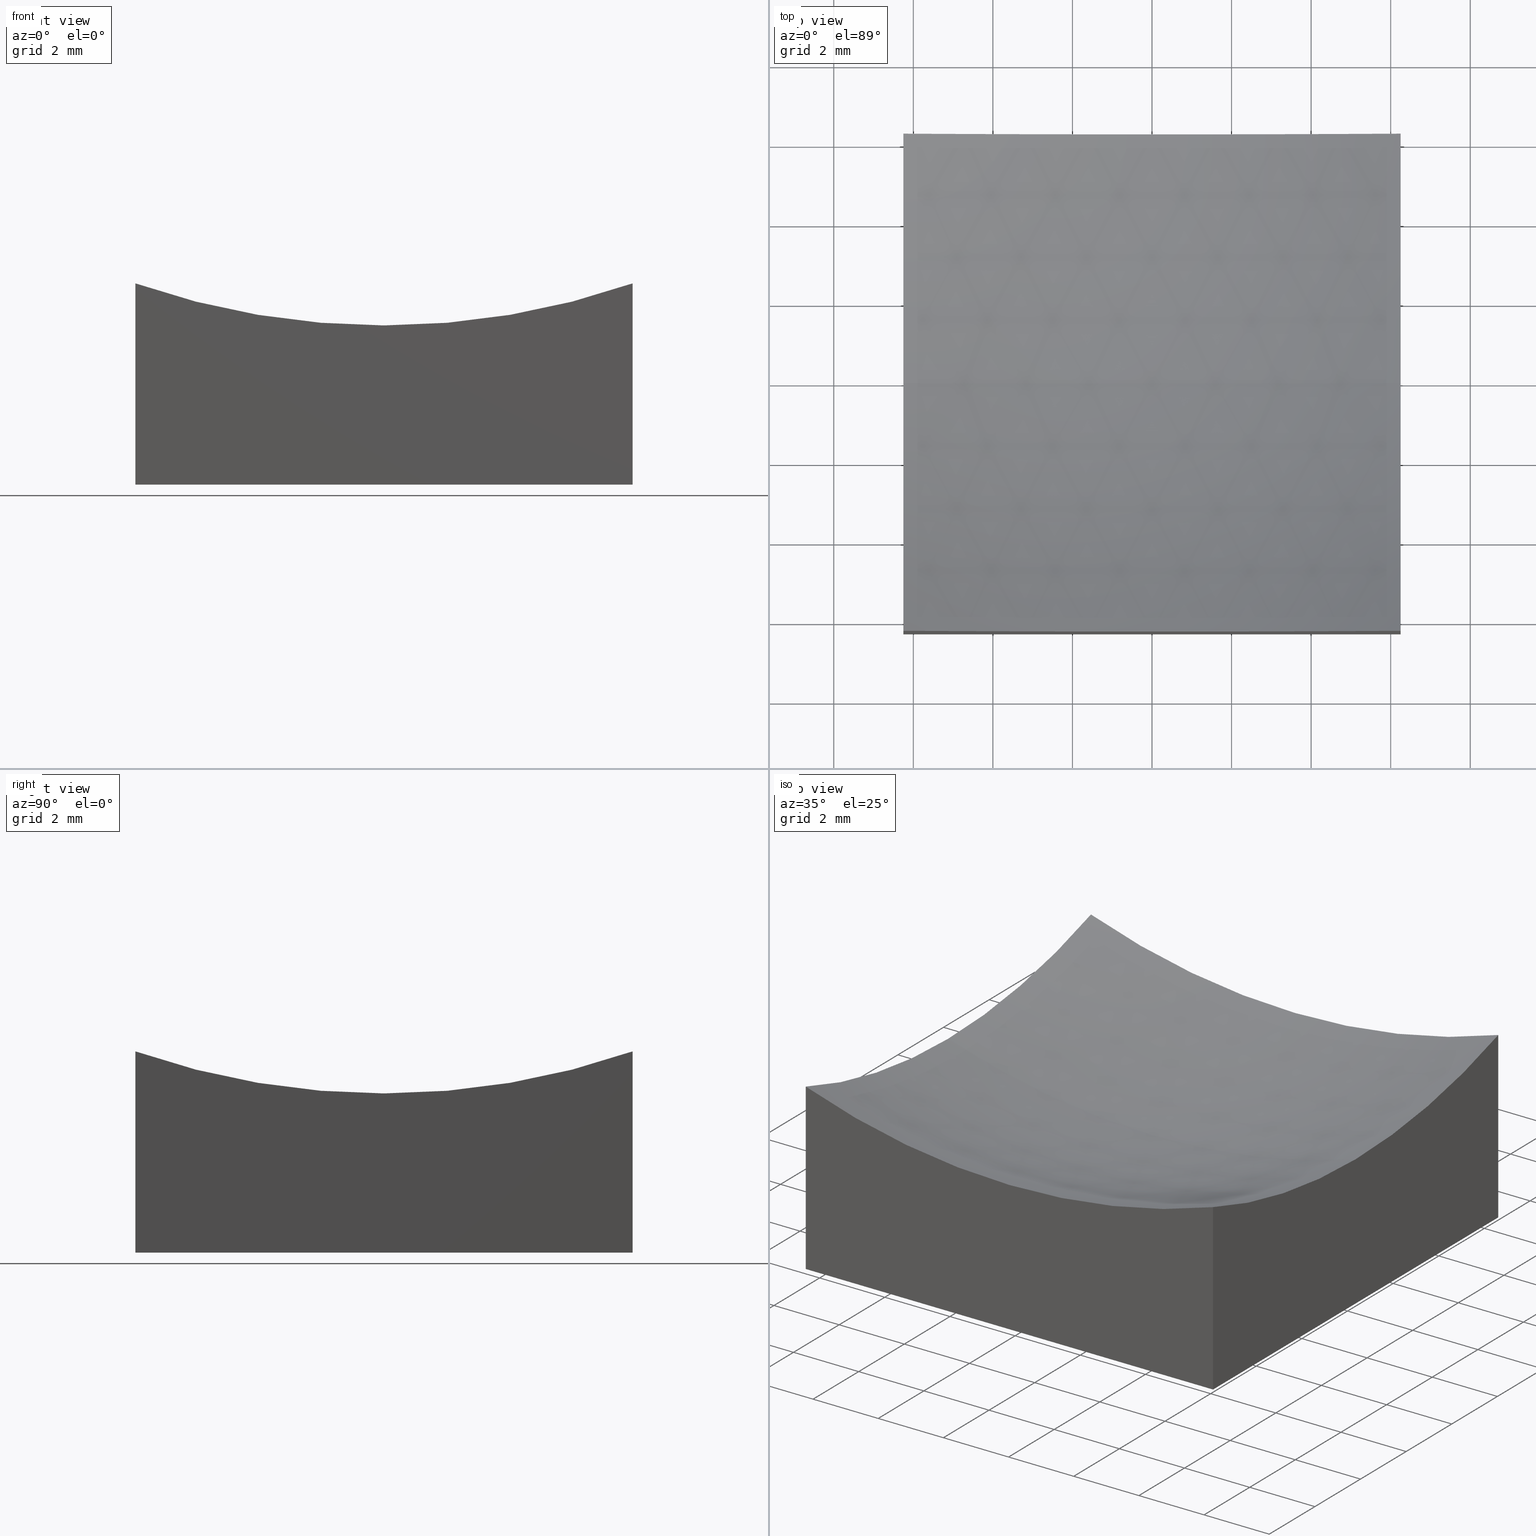
[diagram: canonical four-view strip — front | top / right | iso, engineering-drawing reading convention]
A machine part, canonical four-view strip (front | top / right | iso — engineering-drawing reading convention). The complete STEP part file that produces these views, byte-faithful:
ISO-10303-21;
HEADER;
FILE_DESCRIPTION (( 'STEP AP214' ),
    '1' );
FILE_NAME ('270011.STEP',
    '2020-06-01T07:56:08',
    ( '' ),
    ( '' ),
    'SwSTEP 2.0',
    'SolidWorks 2019',
    '' );
FILE_SCHEMA (( 'AUTOMOTIVE_DESIGN' ));
ENDSEC;

DATA;
#1 = EDGE_CURVE ( 'NONE', #211, #97, #94, .T. ) ;
#2 = VECTOR ( 'NONE', #133, 1000.000000000000000 ) ;
#3 = CARTESIAN_POINT ( 'NONE',  ( -6.250000000000000000, 6.250000000000000888, 10.00000000000000000 ) ) ;
#4 = CARTESIAN_POINT ( 'NONE',  ( 6.250000000000000000, 0.0000000000000000000, 4.001644808036667555 ) ) ;
#5 = DIRECTION ( 'NONE',  ( -0.0000000000000000000, 1.000000000000000000, 0.0000000000000000000 ) ) ;
#6 = DIRECTION ( 'NONE',  ( 0.0000000000000000000, 1.000000000000000000, 0.0000000000000000000 ) ) ;
#7 = AXIS2_PLACEMENT_3D ( 'NONE', #27, #5, #236 ) ;
#8 = EDGE_CURVE ( 'NONE', #244, #20, #241, .T. ) ;
#9 = VECTOR ( 'NONE', #213, 1000.000000000000000 ) ;
#10 = VERTEX_POINT ( 'NONE', #169 ) ;
#11 = ORIENTED_EDGE ( 'NONE', *, *, #84, .F. ) ;
#12 = MANIFOLD_SOLID_BREP ( '�г�-��ת2', #226 ) ;
#13 = SURFACE_STYLE_USAGE ( .BOTH. , #251 ) ;
#14 = ORIENTED_EDGE ( 'NONE', *, *, #207, .F. ) ;
#15 = PLANE ( 'NONE',  #53 ) ;
#16 = EDGE_LOOP ( 'NONE', ( #120, #170, #205, #148 ) ) ;
#17 = CIRCLE ( 'NONE', #158, 18.99835519196332712 ) ;
#18 = DIRECTION ( 'NONE',  ( 0.0000000000000000000, 1.000000000000000000, 0.0000000000000000000 ) ) ;
#19 = CARTESIAN_POINT ( 'NONE',  ( -6.250000000000000000, -6.250000000000000888, 0.0000000000000000000 ) ) ;
#20 = VERTEX_POINT ( 'NONE', #19 ) ;
#21 = DIRECTION ( 'NONE',  ( -0.0000000000000000000, -0.0000000000000000000, -1.000000000000000000 ) ) ;
#22 = ADVANCED_FACE ( 'NONE', ( #190 ), #15, .T. ) ;
#23 = COLOUR_RGB ( '',1.000000000000000000, 1.000000000000000000, 1.000000000000000000 ) ;
#24 = DIRECTION ( 'NONE',  ( 1.000000000000000000, 0.0000000000000000000, 0.0000000000000000000 ) ) ;
#25 = CARTESIAN_POINT ( 'NONE',  ( 2.816687638038912352E-15, 6.250000000000000888, 23.00000000000000000 ) ) ;
#26 = EDGE_CURVE ( 'NONE', #10, #244, #128, .T. ) ;
#27 = CARTESIAN_POINT ( 'NONE',  ( 2.816687638038912352E-15, 0.0000000000000000000, 23.00000000000000000 ) ) ;
#28 = LINE ( 'NONE', #127, #139 ) ;
#29 = DIRECTION ( 'NONE',  ( -0.0000000000000000000, 0.0000000000000000000, -1.000000000000000000 ) ) ;
#30 = ORIENTED_EDGE ( 'NONE', *, *, #179, .T. ) ;
#31 =( GEOMETRIC_REPRESENTATION_CONTEXT ( 3 ) GLOBAL_UNCERTAINTY_ASSIGNED_CONTEXT ( ( #129 ) ) GLOBAL_UNIT_ASSIGNED_CONTEXT ( ( #166, #151, #118 ) ) REPRESENTATION_CONTEXT ( 'NONE', 'WORKASPACE' ) );
#32 = EDGE_LOOP ( 'NONE', ( #192, #167, #110, #14, #208 ) ) ;
#33 = ORIENTED_EDGE ( 'NONE', *, *, #95, .T. ) ;
#34 = VERTEX_POINT ( 'NONE', #65 ) ;
#35 = CARTESIAN_POINT ( 'NONE',  ( 6.250000000000000000, 0.0000000000000000000, 23.00000000000000000 ) ) ;
#36 = DIRECTION ( 'NONE',  ( 0.0000000000000000000, 0.0000000000000000000, 1.000000000000000000 ) ) ;
#37 = AXIS2_PLACEMENT_3D ( 'NONE', #209, #18, #98 ) ;
#38 = ORIENTED_EDGE ( 'NONE', *, *, #163, .F. ) ;
#39 = PLANE ( 'NONE',  #206 ) ;
#40 = PRODUCT_CONTEXT ( 'NONE', #220, 'mechanical' ) ;
#41 = VECTOR ( 'NONE', #144, 1000.000000000000000 ) ;
#42 = EDGE_CURVE ( 'NONE', #147, #20, #201, .T. ) ;
#43 = AXIS2_PLACEMENT_3D ( 'NONE', #235, #86, #45 ) ;
#44 = FACE_OUTER_BOUND ( 'NONE', #32, .T. ) ;
#45 = DIRECTION ( 'NONE',  ( 1.000000000000000000, 0.0000000000000000000, 1.734723475976807094E-16 ) ) ;
#46 = DIRECTION ( 'NONE',  ( 0.0000000000000000000, -0.0000000000000000000, 1.000000000000000000 ) ) ;
#47 = UNCERTAINTY_MEASURE_WITH_UNIT (LENGTH_MEASURE( 1.000000000000000082E-05 ), #61, 'distance_accuracy_value', 'NONE');
#48 = DIRECTION ( 'NONE',  ( 1.000000000000000000, 0.0000000000000000000, -0.0000000000000000000 ) ) ;
#49 = STYLED_ITEM ( 'NONE', ( #173 ), #12 ) ;
#50 = ORIENTED_EDGE ( 'NONE', *, *, #90, .F. ) ;
#51 = DIRECTION ( 'NONE',  ( -0.0000000000000000000, 0.0000000000000000000, -1.000000000000000000 ) ) ;
#52 = ORIENTED_EDGE ( 'NONE', *, *, #1, .F. ) ;
#53 = AXIS2_PLACEMENT_3D ( 'NONE', #76, #224, #51 ) ;
#54 = APPLICATION_PROTOCOL_DEFINITION ( 'draft international standard', 'automotive_design', 1998, #240 ) ;
#55 = ORIENTED_EDGE ( 'NONE', *, *, #232, .T. ) ;
#56 = CARTESIAN_POINT ( 'NONE',  ( 6.250000000000000000, 6.250000000000000888, 10.00000000000000000 ) ) ;
#57 = DIRECTION ( 'NONE',  ( 0.0000000000000000000, 0.0000000000000000000, -1.000000000000000000 ) ) ;
#58 = ADVANCED_FACE ( 'NONE', ( #140 ), #218, .T. ) ;
#59 = VERTEX_POINT ( 'NONE', #199 ) ;
#60 = DIRECTION ( 'NONE',  ( 0.0000000000000000000, 0.0000000000000000000, -1.000000000000000000 ) ) ;
#61 =( LENGTH_UNIT ( ) NAMED_UNIT ( * ) SI_UNIT ( .MILLI., .METRE. ) );
#62 = DIRECTION ( 'NONE',  ( 1.224646799147353207E-16, 1.000000000000000000, 2.504325565046283805E-32 ) ) ;
#63 = DIRECTION ( 'NONE',  ( 1.000000000000000000, 0.0000000000000000000, -0.0000000000000000000 ) ) ;
#64 = AXIS2_PLACEMENT_3D ( 'NONE', #200, #202, #74 ) ;
#65 = CARTESIAN_POINT ( 'NONE',  ( 6.250000000000000000, -6.250000000000000888, 5.059124881990842759 ) ) ;
#66 = CARTESIAN_POINT ( 'NONE',  ( -6.250000000000000000, -6.250000000000000888, 5.059124881990846312 ) ) ;
#67 = ADVANCED_FACE ( 'NONE', ( #44 ), #85, .F. ) ;
#68 = VECTOR ( 'NONE', #106, 1000.000000000000000 ) ;
#69 = ORIENTED_EDGE ( 'NONE', *, *, #203, .T. ) ;
#70 = ORIENTED_EDGE ( 'NONE', *, *, #95, .F. ) ;
#71 =( LENGTH_UNIT ( ) NAMED_UNIT ( * ) SI_UNIT ( .MILLI., .METRE. ) );
#72 = ORIENTED_EDGE ( 'NONE', *, *, #42, .F. ) ;
#73 = VERTEX_POINT ( 'NONE', #183 ) ;
#74 = DIRECTION ( 'NONE',  ( 0.0000000000000000000, 0.0000000000000000000, -1.000000000000000000 ) ) ;
#75 = PRODUCT_RELATED_PRODUCT_CATEGORY ( 'part', '', ( #174 ) ) ;
#76 = CARTESIAN_POINT ( 'NONE',  ( 6.250000000000000000, 6.250000000000000888, 10.00000000000000000 ) ) ;
#77 = DIRECTION ( 'NONE',  ( -1.000000000000000000, 0.0000000000000000000, -0.0000000000000000000 ) ) ;
#78 = ORIENTED_EDGE ( 'NONE', *, *, #82, .F. ) ;
#79 = CARTESIAN_POINT ( 'NONE',  ( -6.250000000000000000, -6.250000000000000888, 10.00000000000000000 ) ) ;
#80 = FILL_AREA_STYLE_COLOUR ( '', #23 ) ;
#81 = AXIS2_PLACEMENT_3D ( 'NONE', #230, #60, #77 ) ;
#82 = EDGE_CURVE ( 'NONE', #20, #59, #104, .T. ) ;
#83 = MECHANICAL_DESIGN_GEOMETRIC_PRESENTATION_REPRESENTATION (  '', ( #49 ), #31 ) ;
#84 = EDGE_CURVE ( 'NONE', #73, #10, #17, .T. ) ;
#85 = SPHERICAL_SURFACE ( 'NONE', #7, 20.00000000000000000 ) ;
#86 = DIRECTION ( 'NONE',  ( -0.0000000000000000000, 1.000000000000000000, 0.0000000000000000000 ) ) ;
#87 = CARTESIAN_POINT ( 'NONE',  ( -6.250000000000000000, 0.0000000000000000000, 23.00000000000000000 ) ) ;
#88 = FACE_OUTER_BOUND ( 'NONE', #225, .T. ) ;
#89 = MECHANICAL_DESIGN_GEOMETRIC_PRESENTATION_REPRESENTATION (  '', ( #162 ), #221 ) ;
#90 = EDGE_CURVE ( 'NONE', #149, #73, #215, .T. ) ;
#91 = COLOUR_RGB ( '',1.000000000000000000, 1.000000000000000000, 1.000000000000000000 ) ;
#92 = ORIENTED_EDGE ( 'NONE', *, *, #8, .F. ) ;
#93 = ORIENTED_EDGE ( 'NONE', *, *, #180, .T. ) ;
#94 = LINE ( 'NONE', #56, #2 ) ;
#95 = EDGE_CURVE ( 'NONE', #211, #10, #103, .T. ) ;
#96 = AXIS2_PLACEMENT_3D ( 'NONE', #193, #121, #246 ) ;
#97 = VERTEX_POINT ( 'NONE', #142 ) ;
#98 = DIRECTION ( 'NONE',  ( 0.0000000000000000000, 0.0000000000000000000, 1.000000000000000000 ) ) ;
#99 = FILL_AREA_STYLE ('',( #243 ) ) ;
#100 = CARTESIAN_POINT ( 'NONE',  ( 6.250000000000000000, 6.250000000000000888, 5.059124881990842759 ) ) ;
#101 = DIRECTION ( 'NONE',  ( 1.000000000000000000, 0.0000000000000000000, 0.0000000000000000000 ) ) ;
#102 = CIRCLE ( 'NONE', #187, 18.99835519196333067 ) ;
#103 = CIRCLE ( 'NONE', #122, 18.99835519196332712 ) ;
#104 = LINE ( 'NONE', #126, #185 ) ;
#105 = CARTESIAN_POINT ( 'NONE',  ( -6.250000000000000000, 6.250000000000000888, 10.00000000000000000 ) ) ;
#106 = DIRECTION ( 'NONE',  ( -0.0000000000000000000, -0.0000000000000000000, -1.000000000000000000 ) ) ;
#107 = PLANE ( 'NONE',  #109 ) ;
#108 = ADVANCED_FACE ( 'NONE', ( #88 ), #217, .F. ) ;
#109 = AXIS2_PLACEMENT_3D ( 'NONE', #105, #48, #29 ) ;
#110 = ORIENTED_EDGE ( 'NONE', *, *, #203, .F. ) ;
#111 = AXIS2_PLACEMENT_3D ( 'NONE', #227, #36, #101 ) ;
#112 = ORIENTED_EDGE ( 'NONE', *, *, #232, .F. ) ;
#113 = CARTESIAN_POINT ( 'NONE',  ( -6.250000000000000000, 6.250000000000000888, 0.0000000000000000000 ) ) ;
#114 = APPLICATION_PROTOCOL_DEFINITION ( 'draft international standard', 'automotive_design', 1998, #220 ) ;
#115 = ORIENTED_EDGE ( 'NONE', *, *, #26, .F. ) ;
#116 = EDGE_CURVE ( 'NONE', #34, #146, #178, .T. ) ;
#117 = LINE ( 'NONE', #195, #239 ) ;
#118 =( NAMED_UNIT ( * ) SI_UNIT ( $, .STERADIAN. ) SOLID_ANGLE_UNIT ( ) );
#119 = CIRCLE ( 'NONE', #96, 18.99835519196332712 ) ;
#120 = ORIENTED_EDGE ( 'NONE', *, *, #180, .F. ) ;
#121 = DIRECTION ( 'NONE',  ( 1.000000000000000000, 0.0000000000000000000, -0.0000000000000000000 ) ) ;
#122 = AXIS2_PLACEMENT_3D ( 'NONE', #25, #6, #219 ) ;
#123 = CARTESIAN_POINT ( 'NONE',  ( -6.250000000000000000, 6.250000000000000888, 10.00000000000000000 ) ) ;
#124 = UNCERTAINTY_MEASURE_WITH_UNIT (LENGTH_MEASURE( 1.000000000000000082E-05 ), #71, 'distance_accuracy_value', 'NONE');
#125 = DIRECTION ( 'NONE',  ( 0.0000000000000000000, -1.000000000000000000, 0.0000000000000000000 ) ) ;
#126 = CARTESIAN_POINT ( 'NONE',  ( -6.250000000000000000, -6.250000000000000888, 0.0000000000000000000 ) ) ;
#127 = CARTESIAN_POINT ( 'NONE',  ( 6.250000000000000000, 6.250000000000000888, 0.0000000000000000000 ) ) ;
#128 = LINE ( 'NONE', #123, #41 ) ;
#129 = UNCERTAINTY_MEASURE_WITH_UNIT (LENGTH_MEASURE( 1.000000000000000082E-05 ), #166, 'distance_accuracy_value', 'NONE');
#130 = ORIENTED_EDGE ( 'NONE', *, *, #116, .F. ) ;
#131 = SURFACE_STYLE_FILL_AREA ( #99 ) ;
#132 = SHAPE_DEFINITION_REPRESENTATION ( #228, #233 ) ;
#133 = DIRECTION ( 'NONE',  ( -0.0000000000000000000, -0.0000000000000000000, -1.000000000000000000 ) ) ;
#134 = LINE ( 'NONE', #137, #9 ) ;
#135 = SURFACE_SIDE_STYLE ('',( #131 ) ) ;
#136 = ORIENTED_EDGE ( 'NONE', *, *, #163, .T. ) ;
#137 = CARTESIAN_POINT ( 'NONE',  ( -6.250000000000000000, 6.250000000000000888, 0.0000000000000000000 ) ) ;
#138 = CIRCLE ( 'NONE', #37, 18.99835519196332712 ) ;
#139 = VECTOR ( 'NONE', #125, 1000.000000000000000 ) ;
#140 = FACE_OUTER_BOUND ( 'NONE', #189, .T. ) ;
#141 = AXIS2_PLACEMENT_3D ( 'NONE', #182, #63, #237 ) ;
#142 = CARTESIAN_POINT ( 'NONE',  ( 6.250000000000000000, 6.250000000000000888, 0.0000000000000000000 ) ) ;
#143 = PRODUCT_DEFINITION_FORMATION_WITH_SPECIFIED_SOURCE ( '�κ�', '', #174, .NOT_KNOWN. ) ;
#144 = DIRECTION ( 'NONE',  ( -0.0000000000000000000, -0.0000000000000000000, -1.000000000000000000 ) ) ;
#145 = CARTESIAN_POINT ( 'NONE',  ( 8.131208459295974111E-15, 0.0000000000000000000, 2.999999999999999112 ) ) ;
#146 = VERTEX_POINT ( 'NONE', #4 ) ;
#147 = VERTEX_POINT ( 'NONE', #66 ) ;
#148 = ORIENTED_EDGE ( 'NONE', *, *, #82, .T. ) ;
#149 = VERTEX_POINT ( 'NONE', #145 ) ;
#150 = DIRECTION ( 'NONE',  ( 0.0000000000000000000, 1.000000000000000000, 0.0000000000000000000 ) ) ;
#151 =( NAMED_UNIT ( * ) PLANE_ANGLE_UNIT ( ) SI_UNIT ( $, .RADIAN. ) );
#152 = ORIENTED_EDGE ( 'NONE', *, *, #1, .T. ) ;
#153 = PLANE ( 'NONE',  #81 ) ;
#154 =( NAMED_UNIT ( * ) PLANE_ANGLE_UNIT ( ) SI_UNIT ( $, .RADIAN. ) );
#155 = ADVANCED_FACE ( 'NONE', ( #160 ), #107, .F. ) ;
#156 = PRESENTATION_LAYER_ASSIGNMENT (  '', '', ( #49 ) ) ;
#157 =( NAMED_UNIT ( * ) SI_UNIT ( $, .STERADIAN. ) SOLID_ANGLE_UNIT ( ) );
#158 = AXIS2_PLACEMENT_3D ( 'NONE', #87, #181, #159 ) ;
#159 = DIRECTION ( 'NONE',  ( 0.0000000000000000000, 0.0000000000000000000, -1.000000000000000000 ) ) ;
#160 = FACE_OUTER_BOUND ( 'NONE', #248, .T. ) ;
#161 = DIRECTION ( 'NONE',  ( 0.0000000000000000000, 1.000000000000000000, 0.0000000000000000000 ) ) ;
#162 = STYLED_ITEM ( 'NONE', ( #194 ), #233 ) ;
#163 = EDGE_CURVE ( 'NONE', #97, #59, #28, .T. ) ;
#164 = ORIENTED_EDGE ( 'NONE', *, *, #84, .T. ) ;
#165 = ORIENTED_EDGE ( 'NONE', *, *, #172, .T. ) ;
#166 =( LENGTH_UNIT ( ) NAMED_UNIT ( * ) SI_UNIT ( .MILLI., .METRE. ) );
#167 = ORIENTED_EDGE ( 'NONE', *, *, #90, .T. ) ;
#168 = CIRCLE ( 'NONE', #64, 20.00000000000000000 ) ;
#169 = CARTESIAN_POINT ( 'NONE',  ( -6.250000000000000000, 6.250000000000000888, 5.059124881990846312 ) ) ;
#170 = ORIENTED_EDGE ( 'NONE', *, *, #207, .T. ) ;
#171 = DIRECTION ( 'NONE',  ( 1.000000000000000000, 0.0000000000000000000, -0.0000000000000000000 ) ) ;
#172 = EDGE_CURVE ( 'NONE', #149, #146, #168, .T. ) ;
#173 = PRESENTATION_STYLE_ASSIGNMENT (( #210 ) ) ;
#174 = PRODUCT ( '270011', '270011', '', ( #40 ) ) ;
#175 =( NAMED_UNIT ( * ) SI_UNIT ( $, .STERADIAN. ) SOLID_ANGLE_UNIT ( ) );
#176 = ORIENTED_EDGE ( 'NONE', *, *, #179, .F. ) ;
#177 = FACE_OUTER_BOUND ( 'NONE', #16, .T. ) ;
#178 = CIRCLE ( 'NONE', #141, 18.99835519196333067 ) ;
#179 = EDGE_CURVE ( 'NONE', #244, #97, #134, .T. ) ;
#180 = EDGE_CURVE ( 'NONE', #34, #59, #117, .T. ) ;
#181 = DIRECTION ( 'NONE',  ( 1.000000000000000000, 0.0000000000000000000, -0.0000000000000000000 ) ) ;
#182 = CARTESIAN_POINT ( 'NONE',  ( 6.250000000000000000, 0.0000000000000000000, 23.00000000000000000 ) ) ;
#183 = CARTESIAN_POINT ( 'NONE',  ( -6.250000000000000000, 7.654042494670965495E-16, 4.001644808036671108 ) ) ;
#184 = DIRECTION ( 'NONE',  ( -1.000000000000000000, 1.224646799147353207E-16, 0.0000000000000000000 ) ) ;
#185 = VECTOR ( 'NONE', #24, 1000.000000000000000 ) ;
#186 = ORIENTED_EDGE ( 'NONE', *, *, #8, .T. ) ;
#187 = AXIS2_PLACEMENT_3D ( 'NONE', #35, #171, #57 ) ;
#188 = FILL_AREA_STYLE ('',( #80 ) ) ;
#189 = EDGE_LOOP ( 'NONE', ( #70, #152, #176, #115 ) ) ;
#190 = FACE_OUTER_BOUND ( 'NONE', #223, .T. ) ;
#191 = SURFACE_STYLE_FILL_AREA ( #188 ) ;
#192 = ORIENTED_EDGE ( 'NONE', *, *, #172, .F. ) ;
#193 = CARTESIAN_POINT ( 'NONE',  ( -6.250000000000000000, 0.0000000000000000000, 23.00000000000000000 ) ) ;
#194 = PRESENTATION_STYLE_ASSIGNMENT (( #13 ) ) ;
#195 = CARTESIAN_POINT ( 'NONE',  ( 6.250000000000000000, -6.250000000000000888, 10.00000000000000000 ) ) ;
#196 = PRESENTATION_LAYER_ASSIGNMENT (  '', '', ( #162 ) ) ;
#197 = ADVANCED_FACE ( 'NONE', ( #177 ), #39, .F. ) ;
#198 = VECTOR ( 'NONE', #247, 1000.000000000000000 ) ;
#199 = CARTESIAN_POINT ( 'NONE',  ( 6.250000000000000000, -6.250000000000000888, 0.0000000000000000000 ) ) ;
#200 = CARTESIAN_POINT ( 'NONE',  ( 2.816687638038912352E-15, 0.0000000000000000000, 23.00000000000000000 ) ) ;
#201 = LINE ( 'NONE', #216, #68 ) ;
#202 = DIRECTION ( 'NONE',  ( 0.0000000000000000000, -1.000000000000000000, 0.0000000000000000000 ) ) ;
#203 = EDGE_CURVE ( 'NONE', #147, #73, #119, .T. ) ;
#204 = ORIENTED_EDGE ( 'NONE', *, *, #26, .T. ) ;
#205 = ORIENTED_EDGE ( 'NONE', *, *, #42, .T. ) ;
#206 = AXIS2_PLACEMENT_3D ( 'NONE', #79, #150, #229 ) ;
#207 = EDGE_CURVE ( 'NONE', #34, #147, #138, .T. ) ;
#208 = ORIENTED_EDGE ( 'NONE', *, *, #116, .T. ) ;
#209 = CARTESIAN_POINT ( 'NONE',  ( 2.816687638038912352E-15, -6.250000000000000888, 23.00000000000000000 ) ) ;
#210 = SURFACE_STYLE_USAGE ( .BOTH. , #135 ) ;
#211 = VERTEX_POINT ( 'NONE', #100 ) ;
#212 = AXIS2_PLACEMENT_3D ( 'NONE', #3, #161, #46 ) ;
#213 = DIRECTION ( 'NONE',  ( 1.000000000000000000, 0.0000000000000000000, 0.0000000000000000000 ) ) ;
#214 =( NAMED_UNIT ( * ) PLANE_ANGLE_UNIT ( ) SI_UNIT ( $, .RADIAN. ) );
#215 = CIRCLE ( 'NONE', #231, 20.00000000000000000 ) ;
#216 = CARTESIAN_POINT ( 'NONE',  ( -6.250000000000000000, -6.250000000000000888, 10.00000000000000000 ) ) ;
#217 = SPHERICAL_SURFACE ( 'NONE', #43, 20.00000000000000000 ) ;
#218 = PLANE ( 'NONE',  #212 ) ;
#219 = DIRECTION ( 'NONE',  ( 0.0000000000000000000, 0.0000000000000000000, 1.000000000000000000 ) ) ;
#220 = APPLICATION_CONTEXT ( 'automotive_design' ) ;
#221 =( GEOMETRIC_REPRESENTATION_CONTEXT ( 3 ) GLOBAL_UNCERTAINTY_ASSIGNED_CONTEXT ( ( #124 ) ) GLOBAL_UNIT_ASSIGNED_CONTEXT ( ( #71, #154, #157 ) ) REPRESENTATION_CONTEXT ( 'NONE', 'WORKASPACE' ) );
#222 = PRODUCT_DEFINITION_CONTEXT ( 'detailed design', #240, 'design' ) ;
#223 = EDGE_LOOP ( 'NONE', ( #130, #93, #38, #52, #112 ) ) ;
#224 = DIRECTION ( 'NONE',  ( 1.000000000000000000, 0.0000000000000000000, -0.0000000000000000000 ) ) ;
#225 = EDGE_LOOP ( 'NONE', ( #50, #165, #55, #33, #11 ) ) ;
#226 = CLOSED_SHELL ( 'NONE', ( #67, #58, #155, #197, #22, #245, #108 ) ) ;
#227 = CARTESIAN_POINT ( 'NONE',  ( 0.0000000000000000000, 0.0000000000000000000, 0.0000000000000000000 ) ) ;
#228 = PRODUCT_DEFINITION_SHAPE ( 'NONE', 'NONE',  #238 ) ;
#229 = DIRECTION ( 'NONE',  ( 0.0000000000000000000, -0.0000000000000000000, 1.000000000000000000 ) ) ;
#230 = CARTESIAN_POINT ( 'NONE',  ( 0.0000000000000000000, 0.0000000000000000000, 0.0000000000000000000 ) ) ;
#231 = AXIS2_PLACEMENT_3D ( 'NONE', #234, #62, #184 ) ;
#232 = EDGE_CURVE ( 'NONE', #146, #211, #102, .T. ) ;
#233 = ADVANCED_BREP_SHAPE_REPRESENTATION ( '270011', ( #12, #111 ), #252 ) ;
#234 = CARTESIAN_POINT ( 'NONE',  ( 2.816687638038912352E-15, 0.0000000000000000000, 23.00000000000000000 ) ) ;
#235 = CARTESIAN_POINT ( 'NONE',  ( 2.816687638038912352E-15, 0.0000000000000000000, 23.00000000000000000 ) ) ;
#236 = DIRECTION ( 'NONE',  ( 1.000000000000000000, 0.0000000000000000000, 1.734723475976807094E-16 ) ) ;
#237 = DIRECTION ( 'NONE',  ( 0.0000000000000000000, 0.0000000000000000000, -1.000000000000000000 ) ) ;
#238 = PRODUCT_DEFINITION ( 'δ֪', '', #143, #222 ) ;
#239 = VECTOR ( 'NONE', #21, 1000.000000000000000 ) ;
#240 = APPLICATION_CONTEXT ( 'automotive_design' ) ;
#241 = LINE ( 'NONE', #113, #198 ) ;
#242 = EDGE_LOOP ( 'NONE', ( #30, #136, #78, #92 ) ) ;
#243 = FILL_AREA_STYLE_COLOUR ( '', #91 ) ;
#244 = VERTEX_POINT ( 'NONE', #250 ) ;
#245 = ADVANCED_FACE ( 'NONE', ( #249 ), #153, .T. ) ;
#246 = DIRECTION ( 'NONE',  ( 0.0000000000000000000, 0.0000000000000000000, -1.000000000000000000 ) ) ;
#247 = DIRECTION ( 'NONE',  ( 0.0000000000000000000, -1.000000000000000000, 0.0000000000000000000 ) ) ;
#248 = EDGE_LOOP ( 'NONE', ( #72, #69, #164, #204, #186 ) ) ;
#249 = FACE_OUTER_BOUND ( 'NONE', #242, .T. ) ;
#250 = CARTESIAN_POINT ( 'NONE',  ( -6.250000000000000000, 6.250000000000000888, 0.0000000000000000000 ) ) ;
#251 = SURFACE_SIDE_STYLE ('',( #191 ) ) ;
#252 =( GEOMETRIC_REPRESENTATION_CONTEXT ( 3 ) GLOBAL_UNCERTAINTY_ASSIGNED_CONTEXT ( ( #47 ) ) GLOBAL_UNIT_ASSIGNED_CONTEXT ( ( #61, #214, #175 ) ) REPRESENTATION_CONTEXT ( 'NONE', 'WORKASPACE' ) );
ENDSEC;
END-ISO-10303-21;
